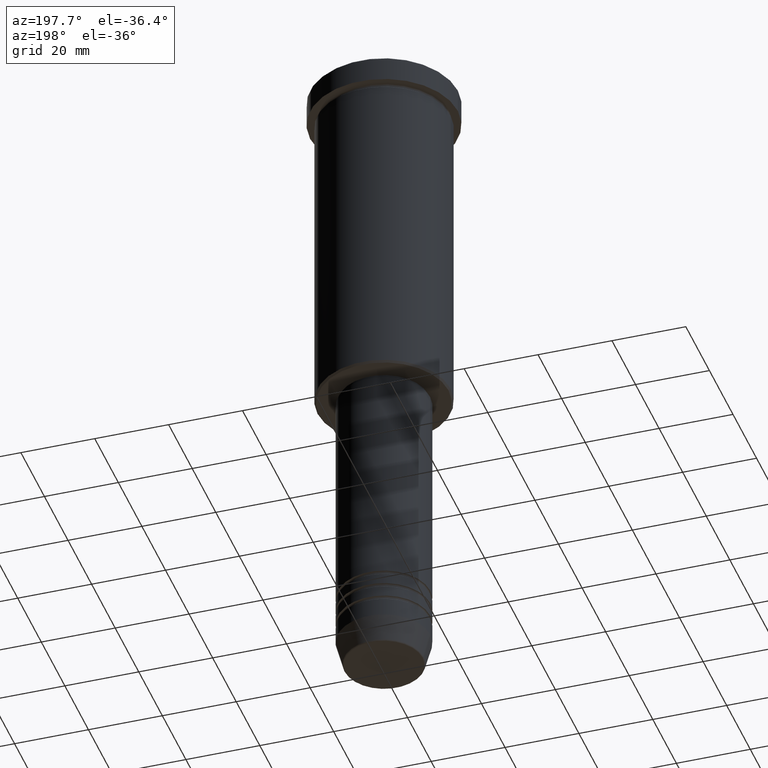
[diagram: clean part render]
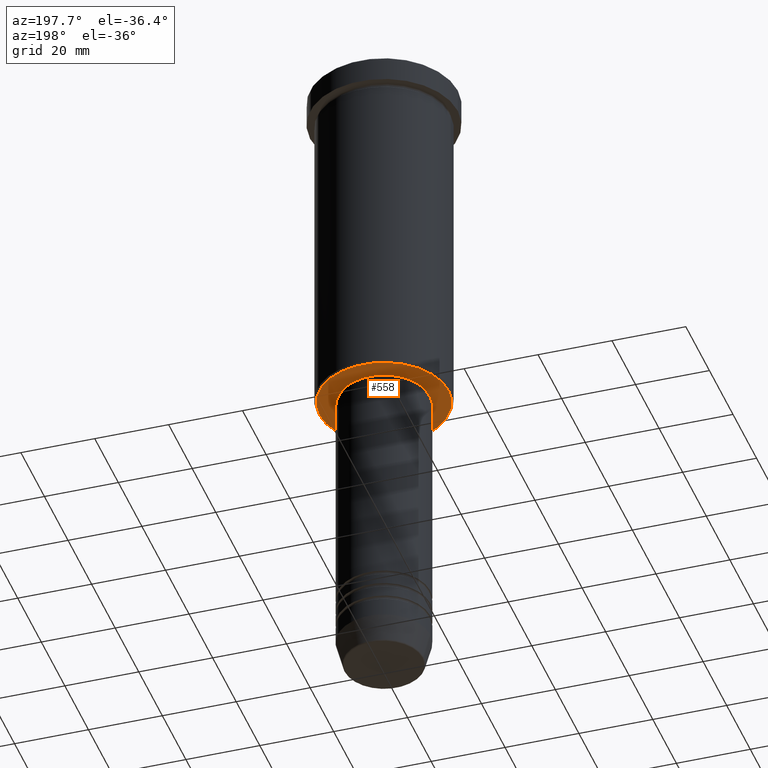
[diagram: same view with one face highlighted and labeled with its STEP entity id]
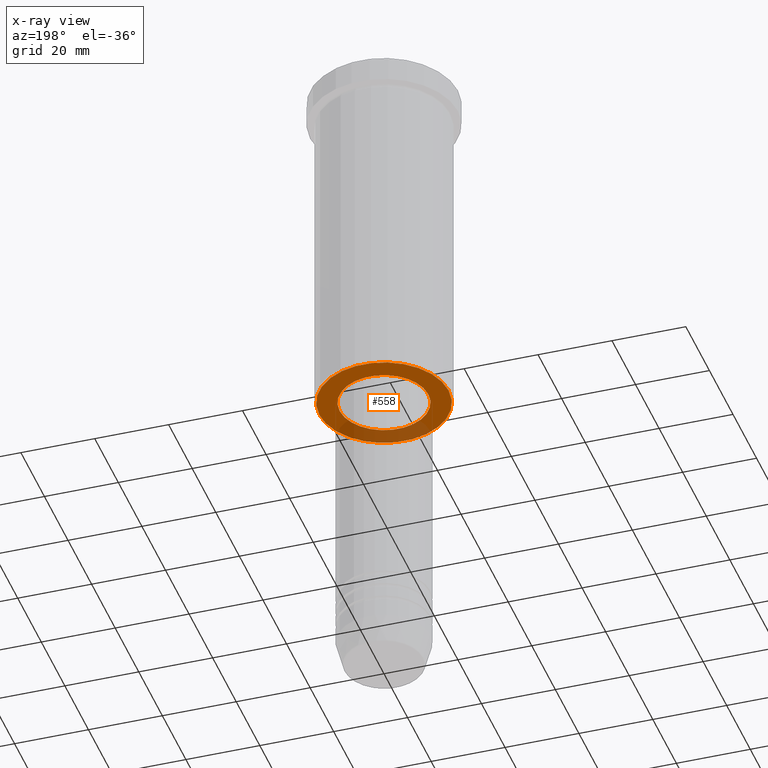
[diagram: x-ray of the same camera — body ghosted, the highlighted face saturated]
A machine part, auxiliary view. The second image highlights one B-rep face of the part: STEP entity #558.
The next image is the same camera in x-ray: the body ghosted, the highlighted face saturated — about 26% of this face is hidden behind the body in this view.
In plain terms, the highlighted planar face has unit normal (0, 0, -1).
Its self-contained STEP definition (entity closure, byte-faithful):
#11 = CIRCLE ( 'NONE', #112, 12.00000000000000000 ) ;
#41 = DIRECTION ( 'NONE',  ( 0.000000000000000000, 0.000000000000000000, -1.000000000000000000 ) ) ;
#57 = CARTESIAN_POINT ( 'NONE',  ( 0.000000000000000000, 18.00000000000000000, -96.00000000000000000 ) ) ;
#105 = DIRECTION ( 'NONE',  ( -1.000000000000000000, 0.000000000000000000, 0.000000000000000000 ) ) ;
#112 = AXIS2_PLACEMENT_3D ( 'NONE', #748, #662, #461 ) ;
#115 = CARTESIAN_POINT ( 'NONE',  ( 0.000000000000000000, 0.000000000000000000, -96.00000000000000000 ) ) ;
#133 = VERTEX_POINT ( 'NONE', #803 ) ;
#149 = DIRECTION ( 'NONE',  ( -0.000000000000000000, -0.000000000000000000, 1.000000000000000000 ) ) ;
#155 = FACE_BOUND ( 'NONE', #1020, .T. ) ;
#204 = CIRCLE ( 'NONE', #220, 12.00000000000000000 ) ;
#220 = AXIS2_PLACEMENT_3D ( 'NONE', #1141, #149, #882 ) ;
#280 = ORIENTED_EDGE ( 'NONE', *, *, #670, .T. ) ;
#307 = DIRECTION ( 'NONE',  ( -1.000000000000000000, 0.000000000000000000, 0.000000000000000000 ) ) ;
#321 = CIRCLE ( 'NONE', #498, 17.50000000000001421 ) ;
#338 = AXIS2_PLACEMENT_3D ( 'NONE', #115, #41, #307 ) ;
#342 = DIRECTION ( 'NONE',  ( -1.000000000000000000, 0.000000000000000000, -0.000000000000000000 ) ) ;
#387 = CARTESIAN_POINT ( 'NONE',  ( 12.00000000000000000, 0.000000000000000000, -96.00000000000000000 ) ) ;
#398 = EDGE_CURVE ( 'NONE', #1169, #133, #837, .T. ) ;
#407 = ORIENTED_EDGE ( 'NONE', *, *, #648, .T. ) ;
#461 = DIRECTION ( 'NONE',  ( 1.000000000000000000, 0.000000000000000000, 0.000000000000000000 ) ) ;
#473 = EDGE_LOOP ( 'NONE', ( #280, #509 ) ) ;
#498 = AXIS2_PLACEMENT_3D ( 'NONE', #827, #927, #105 ) ;
#509 = ORIENTED_EDGE ( 'NONE', *, *, #398, .T. ) ;
#524 = DIRECTION ( 'NONE',  ( 0.000000000000000000, 0.000000000000000000, -1.000000000000000000 ) ) ;
#542 = CARTESIAN_POINT ( 'NONE',  ( -17.50000000000001421, 2.173748068486552430E-15, -96.00000000000000000 ) ) ;
#555 = AXIS2_PLACEMENT_3D ( 'NONE', #57, #524, #342 ) ;
#558 = ADVANCED_FACE ( 'NONE', ( #1054, #155 ), #878, .T. ) ;
#640 = CARTESIAN_POINT ( 'NONE',  ( -12.00000000000000000, 1.469576158976823947E-15, -96.00000000000000000 ) ) ;
#648 = EDGE_CURVE ( 'NONE', #671, #843, #11, .T. ) ;
#662 = DIRECTION ( 'NONE',  ( -0.000000000000000000, -0.000000000000000000, 1.000000000000000000 ) ) ;
#670 = EDGE_CURVE ( 'NONE', #133, #1169, #321, .T. ) ;
#671 = VERTEX_POINT ( 'NONE', #640 ) ;
#748 = CARTESIAN_POINT ( 'NONE',  ( 0.000000000000000000, 0.000000000000000000, -96.00000000000000000 ) ) ;
#803 = CARTESIAN_POINT ( 'NONE',  ( 17.50000000000001421, 0.000000000000000000, -96.00000000000000000 ) ) ;
#827 = CARTESIAN_POINT ( 'NONE',  ( 0.000000000000000000, 0.000000000000000000, -96.00000000000000000 ) ) ;
#837 = CIRCLE ( 'NONE', #338, 17.50000000000001421 ) ;
#843 = VERTEX_POINT ( 'NONE', #387 ) ;
#869 = ORIENTED_EDGE ( 'NONE', *, *, #902, .T. ) ;
#878 = PLANE ( 'NONE',  #555 ) ;
#882 = DIRECTION ( 'NONE',  ( 1.000000000000000000, 0.000000000000000000, 0.000000000000000000 ) ) ;
#902 = EDGE_CURVE ( 'NONE', #843, #671, #204, .T. ) ;
#927 = DIRECTION ( 'NONE',  ( 0.000000000000000000, 0.000000000000000000, -1.000000000000000000 ) ) ;
#1020 = EDGE_LOOP ( 'NONE', ( #869, #407 ) ) ;
#1054 = FACE_OUTER_BOUND ( 'NONE', #473, .T. ) ;
#1141 = CARTESIAN_POINT ( 'NONE',  ( 0.000000000000000000, 0.000000000000000000, -96.00000000000000000 ) ) ;
#1169 = VERTEX_POINT ( 'NONE', #542 ) ;